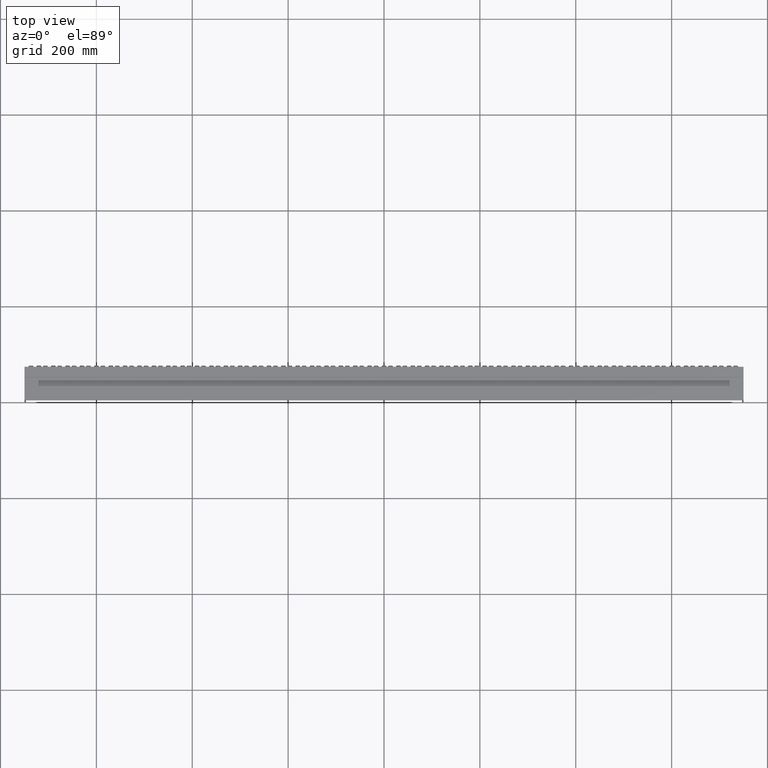
[diagram: clean part render]
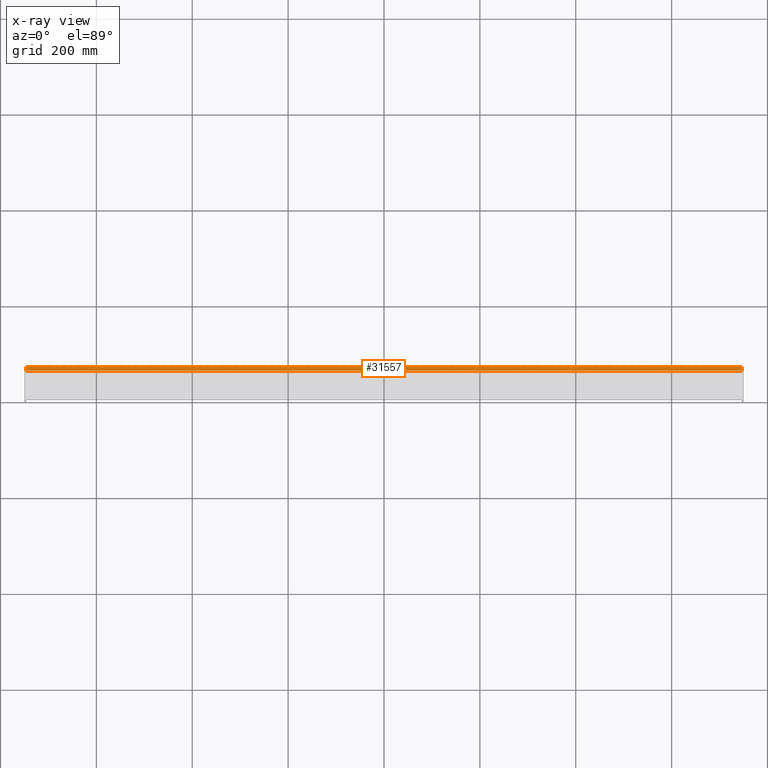
[diagram: x-ray — body ghosted, one internal face saturated and labeled with its STEP entity id]
A machine part, top view, then the same camera in x-ray: the body is ghosted and one INTERNAL B-rep face — a face not visible from any outside direction — is saturated and labeled: STEP entity #31557.
In plain terms, the highlighted planar face has unit normal (0, 0, -1).
Its self-contained STEP definition (entity closure, byte-faithful):
#863 = FACE_OUTER_BOUND ( 'NONE', #37507, .T. ) ;
#2881 = ORIENTED_EDGE ( 'NONE', *, *, #21700, .F. ) ;
#3197 = ORIENTED_EDGE ( 'NONE', *, *, #35204, .T. ) ;
#3334 = LINE ( 'NONE', #19090, #4903 ) ;
#4629 = DIRECTION ( 'NONE',  ( -1.000000000000000000, -0.0000000000000000000, -0.0000000000000000000 ) ) ;
#4903 = VECTOR ( 'NONE', #15820, 1000.000000000000000 ) ;
#12347 = ORIENTED_EDGE ( 'NONE', *, *, #13281, .F. ) ;
#12701 = CARTESIAN_POINT ( 'NONE',  ( 755.1394102980498200, 62.00000000000000700, -30.75000000000001400 ) ) ;
#12978 = VECTOR ( 'NONE', #24687, 1000.000000000000000 ) ;
#13039 = CARTESIAN_POINT ( 'NONE',  ( 747.0000000000000000, 62.00000000000000700, -30.75000000000001400 ) ) ;
#13281 = EDGE_CURVE ( 'NONE', #19886, #27246, #3334, .T. ) ;
#13377 = CARTESIAN_POINT ( 'NONE',  ( 747.0000000000000000, 62.00000000000000700, -30.75000000000001400 ) ) ;
#13486 = LINE ( 'NONE', #31511, #17157 ) ;
#13788 = CARTESIAN_POINT ( 'NONE',  ( -747.0000000000000000, 62.00000000000000700, -30.75000000000001400 ) ) ;
#15792 = DIRECTION ( 'NONE',  ( 0.0000000000000000000, 0.0000000000000000000, -1.000000000000000000 ) ) ;
#15820 = DIRECTION ( 'NONE',  ( 0.0000000000000000000, 1.000000000000000000, 0.0000000000000000000 ) ) ;
#17157 = VECTOR ( 'NONE', #4629, 1000.000000000000000 ) ;
#19090 = CARTESIAN_POINT ( 'NONE',  ( -747.0000000000000000, 62.00000000000000700, -30.75000000000001400 ) ) ;
#19886 = VERTEX_POINT ( 'NONE', #13788 ) ;
#20166 = DIRECTION ( 'NONE',  ( 0.0000000000000000000, 1.000000000000000000, 0.0000000000000000000 ) ) ;
#21124 = VECTOR ( 'NONE', #20166, 1000.000000000000000 ) ;
#21700 = EDGE_CURVE ( 'NONE', #33620, #19886, #13486, .T. ) ;
#24687 = DIRECTION ( 'NONE',  ( -1.000000000000000000, -0.0000000000000000000, -0.0000000000000000000 ) ) ;
#27246 = VERTEX_POINT ( 'NONE', #43751 ) ;
#27966 = CARTESIAN_POINT ( 'NONE',  ( 755.1394102980498200, 70.00000000000000000, -30.75000000000001400 ) ) ;
#28399 = AXIS2_PLACEMENT_3D ( 'NONE', #12701, #15792, #42997 ) ;
#31511 = CARTESIAN_POINT ( 'NONE',  ( 755.1394102980498200, 62.00000000000000700, -30.75000000000001400 ) ) ;
#31557 = ADVANCED_FACE ( 'NONE', ( #863 ), #32453, .F. ) ;
#32442 = ORIENTED_EDGE ( 'NONE', *, *, #37317, .T. ) ;
#32451 = VERTEX_POINT ( 'NONE', #36484 ) ;
#32453 = PLANE ( 'NONE',  #28399 ) ;
#33620 = VERTEX_POINT ( 'NONE', #13039 ) ;
#34984 = LINE ( 'NONE', #13377, #21124 ) ;
#35204 = EDGE_CURVE ( 'NONE', #32451, #27246, #38554, .T. ) ;
#36484 = CARTESIAN_POINT ( 'NONE',  ( 747.0000000000000000, 70.00000000000000000, -30.75000000000001400 ) ) ;
#37317 = EDGE_CURVE ( 'NONE', #33620, #32451, #34984, .T. ) ;
#37507 = EDGE_LOOP ( 'NONE', ( #2881, #32442, #3197, #12347 ) ) ;
#38554 = LINE ( 'NONE', #27966, #12978 ) ;
#42997 = DIRECTION ( 'NONE',  ( -1.000000000000000000, 0.0000000000000000000, -0.0000000000000000000 ) ) ;
#43751 = CARTESIAN_POINT ( 'NONE',  ( -747.0000000000000000, 70.00000000000000000, -30.75000000000001400 ) ) ;